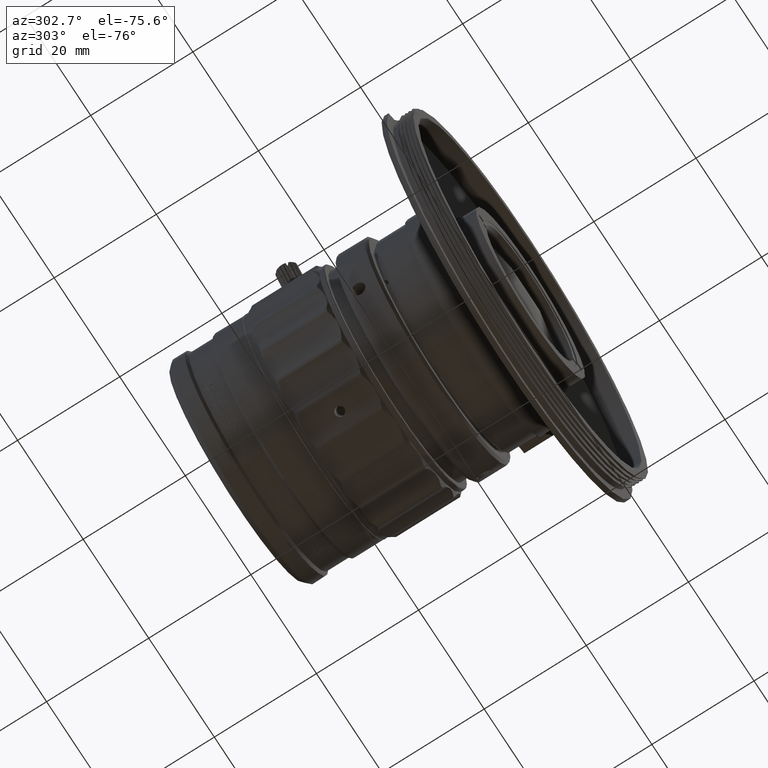
[diagram: clean part render]
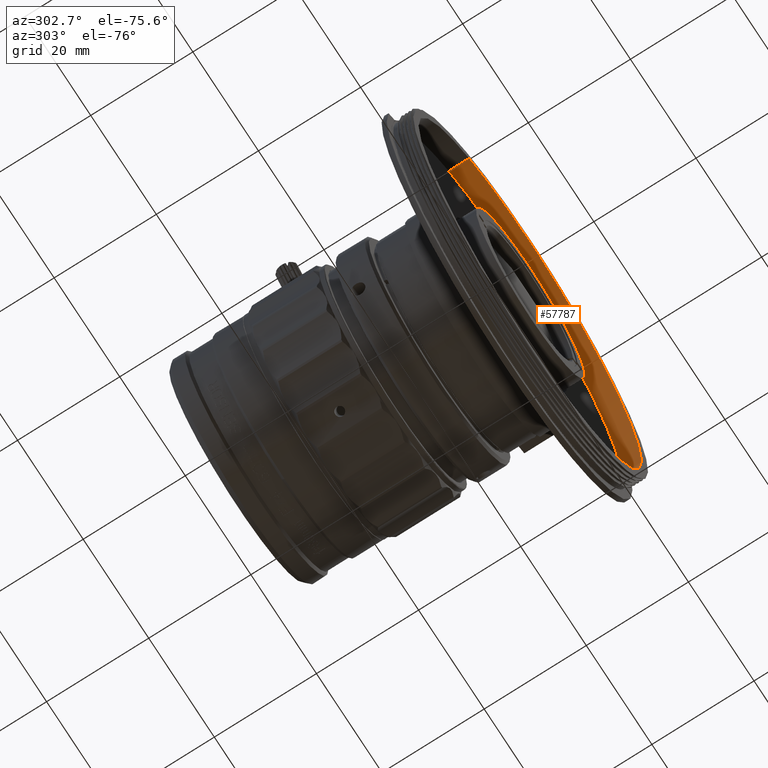
[diagram: same view with one face highlighted and labeled with its STEP entity id]
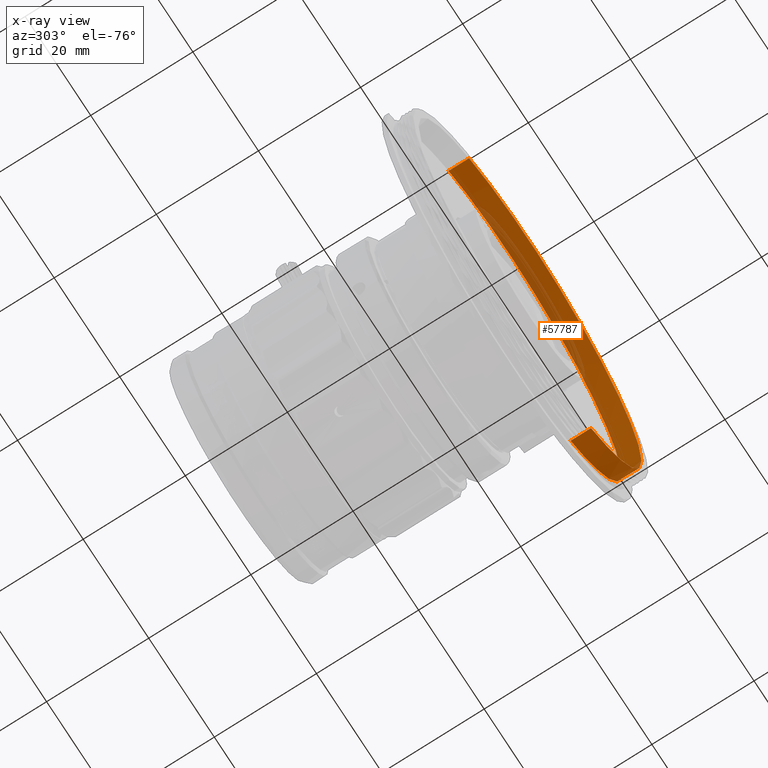
[diagram: x-ray of the same camera — body ghosted, the highlighted face saturated]
A machine part, auxiliary view. The second image highlights one B-rep face of the part: STEP entity #57787.
The next image is the same camera in x-ray: the body ghosted, the highlighted face saturated — about 18% of this face is hidden behind the body in this view.
In plain terms, the highlighted face is a freeform B-spline surface patch.
Its self-contained STEP definition (entity closure, byte-faithful):
#2507 = CARTESIAN_POINT ( 'NONE',  ( 46.77242415430350775, 0.8732623999999999942, 44.06055974948669984 ) ) ;
#3594 = CARTESIAN_POINT ( 'NONE',  ( 43.75283861647584160, 0.8732623999999999942, 63.61039712143575997 ) ) ;
#3958 = CARTESIAN_POINT ( 'NONE',  ( -5.557058089936160350, 0.8732623999999999942, 77.32210827924559737 ) ) ;
#4261 = EDGE_CURVE ( 'NONE', #66605, #15197, #52853, .T. ) ;
#8042 = CARTESIAN_POINT ( 'NONE',  ( 47.06025085834153998, 0.8732623999999999942, 50.73380431866118556 ) ) ;
#8406 = CARTESIAN_POINT ( 'NONE',  ( 35.76952937314655401, 0.8732624000000001052, 74.24112592461263205 ) ) ;
#8646 = EDGE_CURVE ( 'NONE', #68534, #66605, #19183, .T. ) ;
#8775 = CARTESIAN_POINT ( 'NONE',  ( 46.04066165619808970, 0.8732623999999998832, 57.33497656531491060 ) ) ;
#8778 = CARTESIAN_POINT ( 'NONE',  ( 52.39613577179666493, 4.873262400000000660, 50.78078102071915367 ) ) ;
#8935 = CARTESIAN_POINT ( 'NONE',  ( -5.557058091676038813, 0.8732623999999999942, 77.32210829037175870 ) ) ;
#9136 = CARTESIAN_POINT ( 'NONE',  ( 38.42180978825037840, 0.8732623999999999942, 26.12787199093850532 ) ) ;
#9139 = CARTESIAN_POINT ( 'NONE',  ( -5.557058084526319774, 4.873262399999999772, 77.32210828835310679 ) ) ;
#9493 = CARTESIAN_POINT ( 'NONE',  ( 8.939757551524763812, 0.8732624000000001052, 82.68373034130839017 ) ) ;
#10011 = CARTESIAN_POINT ( 'NONE',  ( -5.557058091676038813, 4.873262399999999772, 77.32210829037175870 ) ) ;
#13379 = CARTESIAN_POINT ( 'NONE',  ( 31.63514334600000311, 4.873262399999999772, 20.39460920400000177 ) ) ;
#13940 = CARTESIAN_POINT ( 'NONE',  ( 38.88637050691492902, 0.8732623999999998832, 71.05915935893197855 ) ) ;
#14310 = CARTESIAN_POINT ( 'NONE',  ( 17.83684181036674588, 0.8732624000000001052, 82.59174022491706069 ) ) ;
#15039 = CARTESIAN_POINT ( 'NONE',  ( 24.32570970637089403, 0.8732624000000001052, 81.00755862908630434 ) ) ;
#15197 = VERTEX_POINT ( 'NONE', #53230 ) ;
#15388 = CARTESIAN_POINT ( 'NONE',  ( 28.42298119734748596, 0.8732623999999998832, 79.26056811560565052 ) ) ;
#19183 = B_SPLINE_CURVE_WITH_KNOTS ( 'NONE', 1,
 ( #29278, #57713 ),
 .UNSPECIFIED., .F., .F.,
 ( 2, 2 ),
 ( -1.000000000000000000, 0.0000000000000000000 ),
 .UNSPECIFIED. ) ;
#19854 = ORIENTED_EDGE ( 'NONE', *, *, #69028, .T. ) ;
#20215 = CARTESIAN_POINT ( 'NONE',  ( 39.85582454060434543, 0.8732623999999998832, 27.83884137238554857 ) ) ;
#20399 = CARTESIAN_POINT ( 'NONE',  ( 31.63514334102845282, 0.8732623999999999942, 20.39460919035324693 ) ) ;
#20580 = CARTESIAN_POINT ( 'NONE',  ( 47.01420002884118787, 0.8732624000000001052, 46.27987461472577024 ) ) ;
#20938 = CARTESIAN_POINT ( 'NONE',  ( 45.41473838040020894, 0.8732623999999999942, 59.47787988428539308 ) ) ;
#21467 = CARTESIAN_POINT ( 'NONE',  ( 41.50279217618588490, 0.8732623999999999942, 67.45445946983802799 ) ) ;
#26471 = CARTESIAN_POINT ( 'NONE',  ( 34.05855995837656280, 0.8732623999999996611, 75.67514065373835308 ) ) ;
#29278 = CARTESIAN_POINT ( 'NONE',  ( -5.557058089936160350, 0.8732623999999999942, 77.32210827924559737 ) ) ;
#30553 = CARTESIAN_POINT ( 'NONE',  ( 11.11662035520858005, 4.873262400000000660, 88.21545188940237381 ) ) ;
#30911 = CARTESIAN_POINT ( 'NONE',  ( 45.18824253156799386, 0.8732623999999999942, 37.57169174098542896 ) ) ;
#31280 = CARTESIAN_POINT ( 'NONE',  ( 22.19620630568119424, 0.8732623999999999942, 81.67765578324149089 ) ) ;
#31437 = CARTESIAN_POINT ( 'NONE',  ( 11.11662035520855341, 0.8732623999999998832, 88.21545188940237381 ) ) ;
#32006 = CARTESIAN_POINT ( 'NONE',  ( -1.712995867418984908, 0.8732623999999999942, 79.57215465812186039 ) ) ;
#35916 = CARTESIAN_POINT ( 'NONE',  ( 48.30882179735312576, 4.873262400000001549, 31.28795279619096092 ) ) ;
#36845 = CARTESIAN_POINT ( 'NONE',  ( 42.36858518472106994, 0.8732623999999999942, 31.51656423416016750 ) ) ;
#37235 = CARTESIAN_POINT ( 'NONE',  ( 31.63514334103840397, 4.873262399999999772, 20.39460920761489859 ) ) ;
#37571 = CARTESIAN_POINT ( 'NONE',  ( 45.85833961409098691, 0.8732623999999998832, 39.70119499432576760 ) ) ;
#37840 = EDGE_CURVE ( 'NONE', #68534, #64270, #67724, .T. ) ;
#37932 = CARTESIAN_POINT ( 'NONE',  ( 31.63514334102845282, 0.8732623999999999942, 20.39460919035324693 ) ) ;
#38459 = CARTESIAN_POINT ( 'NONE',  ( 30.60944858057510132, 4.873262400000001549, 84.12813791895688098 ) ) ;
#41253 = B_SPLINE_CURVE_WITH_KNOTS ( 'NONE', 1,
 ( #37235, #49022 ),
 .UNSPECIFIED., .F., .F.,
 ( 2, 2 ),
 ( -1.000000000000000000, 0.0000000000000000000 ),
 .UNSPECIFIED. ) ;
#42024 = CARTESIAN_POINT ( 'NONE',  ( 48.30882179735312576, 4.873262400000000660, 31.28795279619096092 ) ) ;
#42379 = CARTESIAN_POINT ( 'NONE',  ( 46.86441423973895581, 0.8732623999999999942, 52.95764383445995094 ) ) ;
#43120 = CARTESIAN_POINT ( 'NONE',  ( 2.419521499294696731, 0.8732623999999999942, 81.23405452482477074 ) ) ;
#43280 = CARTESIAN_POINT ( 'NONE',  ( 30.60944858057510132, 0.8732623999999998832, 84.12813791895688098 ) ) ;
#43472 = CARTESIAN_POINT ( 'NONE',  ( 35.23984323888403480, 0.8732623999999996611, 23.01103088628036275 ) ) ;
#47563 = CARTESIAN_POINT ( 'NONE',  ( 31.63514334103840397, 4.873262399999999772, 20.39460920761489859 ) ) ;
#48280 = CARTESIAN_POINT ( 'NONE',  ( 15.61752675877120033, 0.8732624000000002162, 82.83351610919265795 ) ) ;
#48452 = CARTESIAN_POINT ( 'NONE',  ( 11.11662035520855341, 4.873262400000001549, 88.21545188940237381 ) ) ;
#48810 = CARTESIAN_POINT ( 'NONE',  ( 41.50279217618588490, 4.873262399999999772, 67.45445946983802799 ) ) ;
#49002 = CARTESIAN_POINT ( 'NONE',  ( 42.72088259213462891, 0.8732623999999999942, 65.59001369493266509 ) ) ;
#49022 = CARTESIAN_POINT ( 'NONE',  ( 31.63514334102845282, 0.8732623999999999942, 20.39460919035324693 ) ) ;
#49169 = ORIENTED_EDGE ( 'NONE', *, *, #4261, .T. ) ;
#49529 = CARTESIAN_POINT ( 'NONE',  ( 31.63514334600000311, 0.8732623999999999942, 20.39460920400000177 ) ) ;
#52520 = FACE_OUTER_BOUND ( 'NONE', #54422, .T. ) ;
#52853 =( BOUNDED_CURVE ( )  B_SPLINE_CURVE ( 3, ( #9139, #30553, #53809, #70802, #8778, #42024, #47563 ),
 .UNSPECIFIED., .F., .F. ) 
 B_SPLINE_CURVE_WITH_KNOTS ( ( 4, 3, 4 ),
 ( -3.141592653589795336, -1.570796326794897668, 0.0000000000000000000 ),
 .UNSPECIFIED. ) 
 CURVE ( )  GEOMETRIC_REPRESENTATION_ITEM ( )  RATIONAL_B_SPLINE_CURVE ( ( 1.000000000000000000, 0.8047378540760217192, 0.8047378540760217192, 1.000000000000000000, 0.8047378540760217192, 0.8047378540760217192, 1.000000000000000000 ) ) 
 REPRESENTATION_ITEM ( '' )  );
#53082 = CARTESIAN_POINT ( 'NONE',  ( 43.44125203147745395, 0.8732624000000001052, 33.47442021247083233 ) ) ;
#53230 = CARTESIAN_POINT ( 'NONE',  ( 31.63514334103840397, 4.873262399999999772, 20.39460920761489859 ) ) ;
#53442 = CARTESIAN_POINT ( 'NONE',  ( 40.28470175619382587, 0.8732624000000001052, 69.31890515651930684 ) ) ;
#53599 = CARTESIAN_POINT ( 'NONE',  ( 48.30882179735312576, 0.8732623999999998832, 31.28795279619096092 ) ) ;
#53809 = CARTESIAN_POINT ( 'NONE',  ( 30.60944858057510842, 4.873262400000000660, 84.12813791895688098 ) ) ;
#54082 = CARTESIAN_POINT ( 'NONE',  ( -5.557058084526319774, 4.873262399999999772, 77.32210828835310679 ) ) ;
#54187 =( BOUNDED_SURFACE ( )  B_SPLINE_SURFACE ( 1, 3, ( 
 ( #13379, #35916, #60959, #48810, #38459, #48452, #10011 ),
 ( #49529, #53599, #54704, #21467, #43280, #31437, #8935 ) ),
 .UNSPECIFIED., .F., .F., .F. ) 
 B_SPLINE_SURFACE_WITH_KNOTS ( ( 2, 2 ),
 ( 4, 3, 4 ),
 ( 0.0000000000000000000, 1.000000000000000000 ),
 ( 0.0000000000000000000, 0.5000000000000000000, 1.000000000000000000 ),
 .UNSPECIFIED. ) 
 GEOMETRIC_REPRESENTATION_ITEM ( )  RATIONAL_B_SPLINE_SURFACE ( (
 ( 1.000000000000000000, 0.8047378540760217192, 0.8047378540760217192, 1.000000000000000000, 0.8047378540760217192, 0.8047378540760217192, 1.000000000000000000),
 ( 1.000000000000000000, 0.8047378540760217192, 0.8047378540760217192, 1.000000000000000000, 0.8047378540760217192, 0.8047378540760217192, 1.000000000000000000) ) ) 
 REPRESENTATION_ITEM ( '' )  SURFACE ( )  );
#54422 = EDGE_LOOP ( 'NONE', ( #19854, #67823, #55317, #49169 ) ) ;
#54704 = CARTESIAN_POINT ( 'NONE',  ( 52.39613577179667203, 0.8732623999999998832, 50.78078102071915367 ) ) ;
#55317 = ORIENTED_EDGE ( 'NONE', *, *, #8646, .T. ) ;
#57713 = CARTESIAN_POINT ( 'NONE',  ( -5.557058084526319774, 4.873262399999999772, 77.32210828835310679 ) ) ;
#57787 = ADVANCED_FACE ( 'NONE', ( #52520 ), #54187, .T. ) ;
#60077 = CARTESIAN_POINT ( 'NONE',  ( 30.38083733705958167, 0.8732623999999999942, 78.18790124994187352 ) ) ;
#60959 = CARTESIAN_POINT ( 'NONE',  ( 52.39613577179667203, 4.873262400000001549, 50.78078102071915367 ) ) ;
#61359 = CARTESIAN_POINT ( 'NONE',  ( -5.557058089936160350, 0.8732623999999999942, 77.32210827924559737 ) ) ;
#64270 = VERTEX_POINT ( 'NONE', #20399 ) ;
#64513 = CARTESIAN_POINT ( 'NONE',  ( 11.16359718864616291, 0.8732623999999999942, 82.87956707203719020 ) ) ;
#65621 = CARTESIAN_POINT ( 'NONE',  ( 4.562424850119485065, 0.8732623999999998832, 81.85997775409137489 ) ) ;
#65979 = CARTESIAN_POINT ( 'NONE',  ( 33.49958919237815991, 0.8732623999999996611, 21.61269966629475547 ) ) ;
#66605 = VERTEX_POINT ( 'NONE', #54082 ) ;
#67724 = B_SPLINE_CURVE_WITH_KNOTS ( 'NONE', 3,
 ( #3958, #70427, #32006, #43120, #65621, #9493, #64513, #48280, #14310, #31280, #15039, #15388, #60077, #26471, #8406, #13940, #53442, #49002, #3594, #20938, #8775, #42379, #8042, #20580, #2507, #37571, #30911, #53082, #36845, #20215, #9136, #43472, #65979, #37932 ),
 .UNSPECIFIED., .F., .F.,
 ( 4, 2, 2, 2, 2, 2, 2, 2, 2, 2, 2, 2, 2, 2, 2, 2, 4 ),
 ( 0.0000000000000000000, 0.1963495408493623751, 0.3926990816987247501, 0.5890486225480872085, 0.7853981633974497223, 0.9817477042468122361, 1.178097245096174639, 1.374446785945536931, 1.570796326794899445, 1.767145867644261958, 1.963495408493623806, 2.159844949342985654, 2.356194490192347946, 2.552544031041709793, 2.748893571891072085, 2.945243112740433489, 3.141592653589795336 ),
 .UNSPECIFIED. ) ;
#67823 = ORIENTED_EDGE ( 'NONE', *, *, #37840, .F. ) ;
#68534 = VERTEX_POINT ( 'NONE', #61359 ) ;
#69028 = EDGE_CURVE ( 'NONE', #15197, #64270, #41253, .T. ) ;
#70427 = CARTESIAN_POINT ( 'NONE',  ( -3.692612230275233554, 0.8732624000000003273, 78.54019875688901209 ) ) ;
#70802 = CARTESIAN_POINT ( 'NONE',  ( 41.50279217618588490, 4.873262399999999772, 67.45445946983801377 ) ) ;